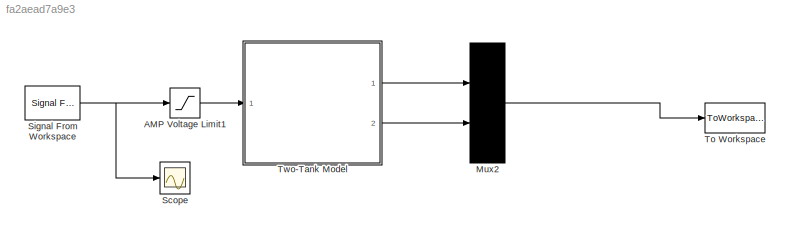
MODEL slx_fa2aead7a9e3
KIND model
CONFIG AbsTol = auto
CONFIG EnableMultiTasking = on
CONFIG FixedStep = Ts
CONFIG MaxStep = auto
CONFIG MinStep = auto
CONFIG RelTol = 1e-3
CONFIG SampleTimeConstraint = Unconstrained
CONFIG Solver = ode4
CONFIG SolverName = ode4
CONFIG StartTime = 0.0
CONFIG StopTime = 60
BLOCK [Saturate] AMP Voltage Limit1
  InputPortMap = u0
  LowerLimit = 0
  Ports = [1, 1]
  UpperLimit = VMAX_AMP
BLOCK [Mux] Mux2
  DisplayOption = bar
  Inputs = 2
  Ports = [2, 1]
BLOCK [Scope] Scope
  NumInputPorts = 1
  Ports = [1]
  ScopeSpecificationString = C++SS(StrPVP('SaveName','ScopeData'),StrPVP('LimitDataPoints','on'),StrPVP('DataFormat','Array'),StrPVP('Decimation','1'),StrPVP('BlockParamSampleInput','off'),StrPVP('SaveName','ScopeData'))
BLOCK [Reference] Signal From Workspace  REF=dspsrcs4/Signal From
Workspace
  Ports = [0, 1]
  SourceBlock = dspsrcs4/Signal From\nWorkspace
  SourceType = Signal From Workspace
BLOCK [ToWorkspace] To Workspace
  FixptAsFi = on
  MaxDataPoints = inf
  Ports = [1]
  SampleTime = -1
  Save2DSignal = 3-D array (concatenate along third dimension)
  SaveFormat = Timeseries
  VariableName = salida
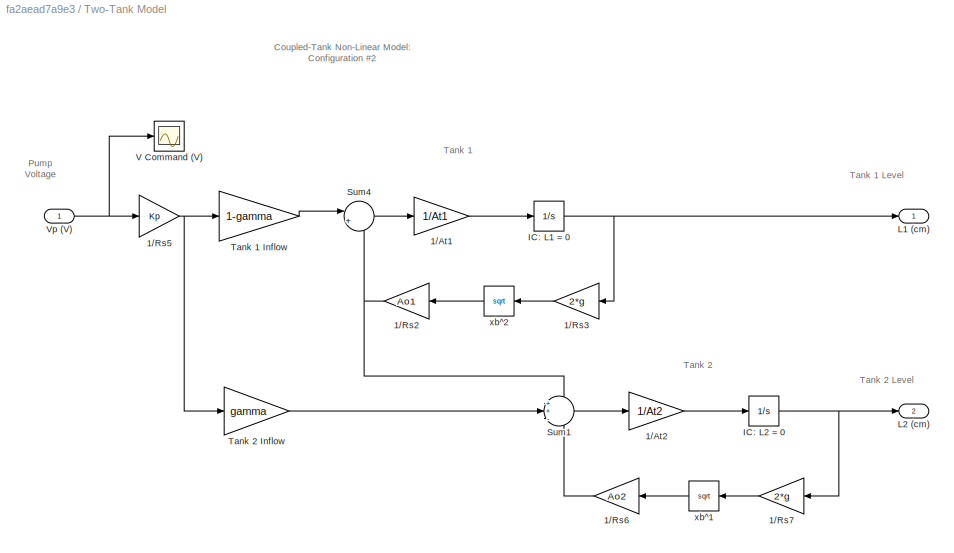
BLOCK [SubSystem] Two-Tank Model
  Ports = [1, 2]
  RequestExecContextInheritance = off
  Variant = off
BLOCK [Gain] Two-Tank Model/1//At1
  Gain = 1/At1
BLOCK [Gain] Two-Tank Model/1//At2
  Gain = 1/At2
BLOCK [Gain] Two-Tank Model/1//Rs2
  Gain = Ao1
BLOCK [Gain] Two-Tank Model/1//Rs3
  Gain = 2*g
BLOCK [Gain] Two-Tank Model/1//Rs5
  Gain = Kp
BLOCK [Gain] Two-Tank Model/1//Rs6
  Gain = Ao2
BLOCK [Gain] Two-Tank Model/1//Rs7
  Gain = 2*g
BLOCK [Integrator] Two-Tank Model/IC: L1 = 0
  Ports = [1, 1]
BLOCK [Integrator] Two-Tank Model/IC: L2 = 0
  Ports = [1, 1]
BLOCK [Outport] Two-Tank Model/L1 (cm)
  IconDisplay = Port number
  InitialOutput = 0
BLOCK [Outport] Two-Tank Model/L2 (cm)
  IconDisplay = Port number
  InitialOutput = 0
  Port = 2
BLOCK [Sum] Two-Tank Model/Sum1
  IconShape = round
  Inputs = ++-
  Ports = [3, 1]
BLOCK [Sum] Two-Tank Model/Sum4
  IconShape = round
  Inputs = |+-
  Ports = [2, 1]
BLOCK [Gain] Two-Tank Model/Tank 1 Inflow
  Gain = 1-gamma
  OutDataTypeStr = Inherit: Inherit via internal rule
  ParamDataTypeStr = Inherit: Inherit via internal rule
  SaturateOnIntegerOverflow = off
BLOCK [Gain] Two-Tank Model/Tank 2 Inflow
  Gain = gamma
  OutDataTypeStr = Inherit: Inherit via internal rule
  ParamDataTypeStr = Inherit: Inherit via internal rule
  SaturateOnIntegerOverflow = off
BLOCK [Scope] Two-Tank Model/V Command (V)
  NumInputPorts = 1
  Ports = [1]
  ScopeSpecificationString = C++SS(StrPVP('Location','[90, 597, 641, 902]'),StrPVP('Open','off'),StrPVP('TickLabels','on'),MxPVP('AxesTitles',24,'struct(''axes1'',''%<SignalLabel>'')'),StrPVP('TimeRange','1.000000'),StrPVP('YMin','-1'),StrPVP('YMax','1'),StrPVP('SaveName','ScopeData2'),StrPVP('BlockParamSampleTime','0'),StrPVP('LimitDataPoints','on'),StrPVP('DataFormat','Array'),StrPVP('Decimation','1'),StrPVP('BlockParamSamp...<+16ch>
BLOCK [Inport] Two-Tank Model/Vp (V)
  IconDisplay = Port number
BLOCK [Math] Two-Tank Model/xb^1
  Operator = sqrt
  Ports = [1, 1]
BLOCK [Math] Two-Tank Model/xb^2
  Operator = sqrt
  Ports = [1, 1]
ANNOTATION Two-Tank Model: Coupled-Tank Non-Linear Model: Configuration #2
ANNOTATION Two-Tank Model: Pump Voltage
ANNOTATION Two-Tank Model: Tank 1
ANNOTATION Two-Tank Model: Tank 1 Level
ANNOTATION Two-Tank Model: Tank 2
ANNOTATION Two-Tank Model: Tank 2 Level
LINE AMP Voltage Limit1:1 -> Two-Tank Model:1
LINE Mux2:1 -> To Workspace:1
NET Signal From Workspace:1 -> AMP Voltage Limit1:1, Scope:1
LINE Two-Tank Model/1//At1:1 -> Two-Tank Model/IC: L1 = 0:1
LINE Two-Tank Model/1//At2:1 -> Two-Tank Model/IC: L2 = 0:1
NET Two-Tank Model/1//Rs2:1 -> Two-Tank Model/Sum1:1, Two-Tank Model/Sum4:2
LINE Two-Tank Model/1//Rs3:1 -> Two-Tank Model/xb^2:1
NET Two-Tank Model/1//Rs5:1 -> Two-Tank Model/Tank 1 Inflow:1, Two-Tank Model/Tank 2 Inflow:1
LINE Two-Tank Model/1//Rs6:1 -> Two-Tank Model/Sum1:3
LINE Two-Tank Model/1//Rs7:1 -> Two-Tank Model/xb^1:1
NET Two-Tank Model/IC: L1 = 0:1 -> Two-Tank Model/1//Rs3:1, Two-Tank Model/L1 (cm):1
NET Two-Tank Model/IC: L2 = 0:1 -> Two-Tank Model/1//Rs7:1, Two-Tank Model/L2 (cm):1
LINE Two-Tank Model/Sum1:1 -> Two-Tank Model/1//At2:1
LINE Two-Tank Model/Sum4:1 -> Two-Tank Model/1//At1:1
LINE Two-Tank Model/Tank 1 Inflow:1 -> Two-Tank Model/Sum4:1
LINE Two-Tank Model/Tank 2 Inflow:1 -> Two-Tank Model/Sum1:2
NET Two-Tank Model/Vp (V):1 -> Two-Tank Model/1//Rs5:1, Two-Tank Model/V Command (V):1
LINE Two-Tank Model/xb^1:1 -> Two-Tank Model/1//Rs6:1
LINE Two-Tank Model/xb^2:1 -> Two-Tank Model/1//Rs2:1
LINE Two-Tank Model:1 -> Mux2:1
LINE Two-Tank Model:2 -> Mux2:2
note: NET lines group one-source signal fan-out (src -> all destinations, sorted); 1:1 wires keep LINE
